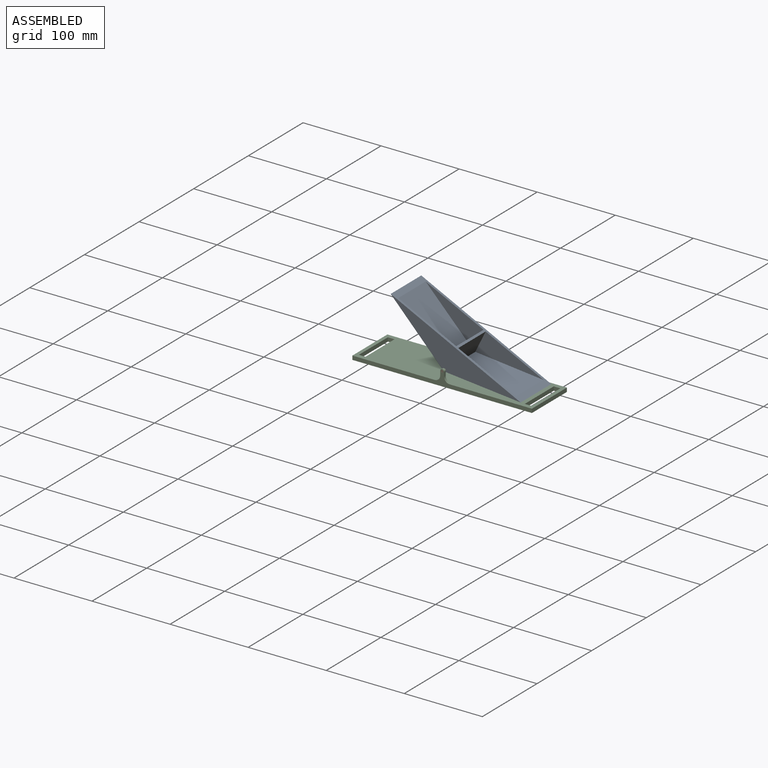
[diagram: assembled view]
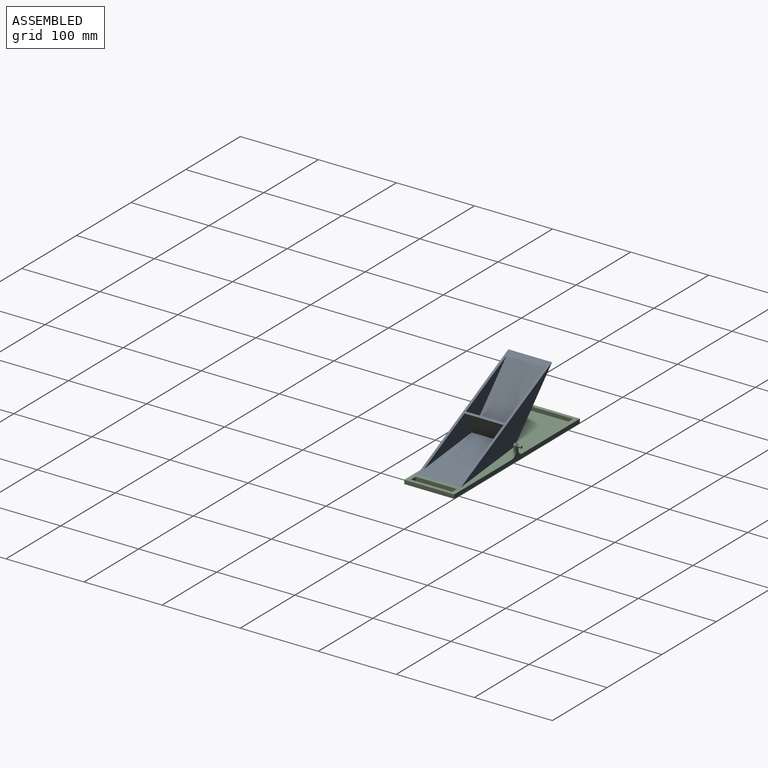
[diagram: assembled view, second angle]
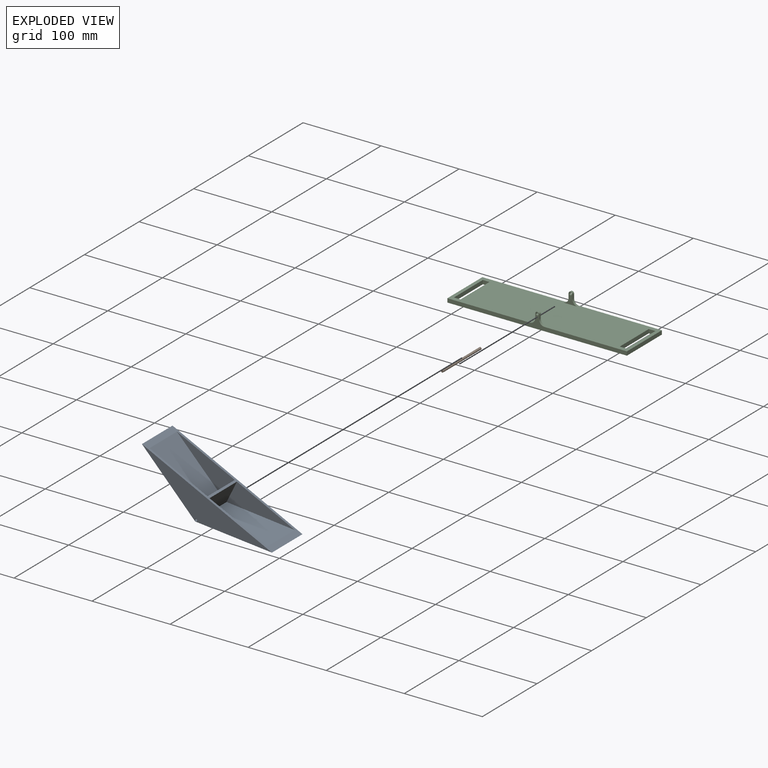
[diagram: exploded view]
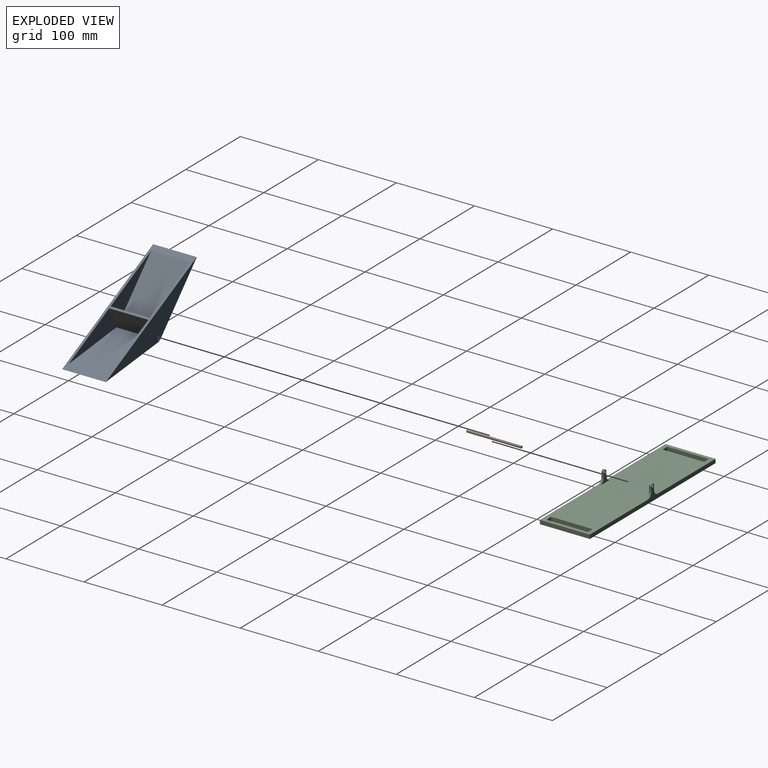
[diagram: exploded view, second angle]
ASSEMBLY  parts=3 mates=2
PART A: 21 faces, bbox 185.3x56x34.3 mm
  f0: plane 23.94x8.85mm, normal (0,-1,0), area 0.2mm2, adj f4,f5,f18
  f1: plane 92.56x34.27mm, normal (0,-1,0), area 0.8mm2, adj f2,f3,f17
  f2: plane 89.86x53mm, normal (-0.35,0,-0.94), area 5079mm2, adj f1,f3,f7,f14
  f3: plane 53x2.7mm, normal (-0.34,0,-0.94), area 152.1mm2, adj f1,f2,f4,f14
  f4: plane 53x2.7mm, normal (0.34,0,-0.94), area 152.1mm2, adj f0,f3,f5,f14
  f5: plane 82.25x56mm, normal (0.35,0,-0.94), area 4844.1mm2, adj f0,f4,f6,f14,f18,f19
  f6: plane 56x7.75mm, normal (0.34,0,-0.94), area 461.6mm2, adj f5,f7,f14,f19
  f7: plane 185.26x56mm, normal (0,0,1), area 2131.9mm2, adj f2,f6,f8,f9,f10,f11,f13,f14
  f8: plane 82.42x50mm, normal (-0.34,0,0.94), area 4385.7mm2, adj f7,f9,f15,f20
  f9: plane 50x30mm, normal (1,0,0), area 1500mm2, adj f7,f8,f15,f20
  f10: plane 50x30mm, normal (-1,0,0), area 1500mm2, adj f7,f11,f13,f16
  f11: plane 82.42x50mm, normal (0.34,0,0.94), area 4385.7mm2, adj f7,f10,f13,f16
  f12: cylinder r=1.55mm len=56mm, axis (0,1,0), area 545.4mm2, adj f14,f19
  f13: plane 82.42x30mm, normal (0,-1,0), area 1236.4mm2, adj f7,f10,f11
  f14: plane 185.26x34.27mm, normal (0,1,0), area 3166.3mm2, adj f2,f3,f4,f5,f6,f7,f12
  f15: plane 82.42x30mm, normal (0,-1,0), area 1236.4mm2, adj f7,f8,f9
  f16: plane 82.42x30mm, normal (0,1,0), area 1236.4mm2, adj f7,f10,f11
  f17: plane 92.56x34.27mm, normal (-0.35,0,-0.94), area 296.1mm2, adj f1,f7,f18,f19
  f18: plane 23.94x8.85mm, normal (0.35,0,-0.94), area 76.6mm2, adj f0,f5,f17,f19
  f19: plane 185.26x34.27mm, normal (0,-1,0), area 3165.3mm2, adj f5,f6,f7,f12,f17,f18
  f20: plane 82.42x30mm, normal (0,1,0), area 1236.4mm2, adj f7,f8,f9
PART B: 3 faces, bbox 3x3x70 mm
  f0: cylinder r=1.5mm len=70mm, axis (0,0,-1), area 659.7mm2, adj f1,f2
  f1: plane 3x3mm, normal (0,0,1), area 7.1mm2, adj f0
  f2: plane 3x3mm, normal (0,0,-1), area 7.1mm2, adj f0
PART C: 28 faces, bbox 230x64x20 mm
  f0: plane 230x64mm, normal (0,0,1), area 13705mm2, adj f2,f3,f8,f9,f10,f11,f16,f17
  f1: plane 230x64mm, normal (0,0,-1), area 13819mm2, adj f2,f3,f8,f16,f20,f21,f22,f23
  f2: plane 64x5mm, normal (-1,0,0), area 320mm2, adj f0,f1,f8,f16
  f3: plane 64x5mm, normal (1,0,0), area 320mm2, adj f0,f1,f8,f16
  f4: plane 5.5x3mm, normal (1,0,0), area 16.5mm2, adj f5,f8,f9,f10
  f5: cylinder r=2.5mm len=5mm, axis (0,-1,0), area 23.6mm2, adj f4,f6,f8,f9
  f6: plane 5.5x3mm, normal (-1,0,0), area 16.5mm2, adj f5,f8,f9,f11
  f7: cylinder r=1.6mm len=3.2mm, axis (0,-1,0), area 30.2mm2, adj f8,f9
  f8: plane 230x20mm, normal (0,1,0), area 1235.3mm2, adj f0,f1,f2,f3,f4,f5,f6,f7
  f9: plane 19x15mm, normal (0,-1,0), area 85.3mm2, adj f0,f4,f5,f6,f7,f10,f11
  f10: cylinder r=7mm len=7mm, axis (0,-1,0), area 33mm2, adj f0,f4,f8,f9
  f11: cylinder r=7mm len=7mm, axis (0,1,0), area 33mm2, adj f0,f6,f8,f9
  f12: plane 5.5x3mm, normal (1,0,0), area 16.5mm2, adj f13,f16,f17,f18
  f13: cylinder r=2.5mm len=5mm, axis (0,1,0), area 23.6mm2, adj f12,f14,f16,f17
  f14: plane 5.5x3mm, normal (-1,0,0), area 16.5mm2, adj f13,f16,f17,f19
  f15: cylinder r=1.6mm len=3.2mm, axis (0,1,0), area 30.2mm2, adj f16,f17
  f16: plane 230x20mm, normal (0,-1,0), area 1235.3mm2, adj f0,f1,f2,f3,f12,f13,f14,f15
  f17: plane 19x15mm, normal (0,1,0), area 85.3mm2, adj f0,f12,f13,f14,f15,f18,f19
  f18: cylinder r=7mm len=7mm, axis (0,-1,0), area 33mm2, adj f0,f12,f16,f17
  f19: cylinder r=7mm len=7mm, axis (0,1,0), area 33mm2, adj f0,f14,f16,f17
  f20: plane 53x5mm, normal (1,0,0), area 265mm2, adj f0,f1,f21,f23
  f21: plane 8.5x5mm, normal (0,1,0), area 42.5mm2, adj f0,f1,f20,f22
  f22: plane 53x5mm, normal (-1,0,0), area 265mm2, adj f0,f1,f21,f23
  f23: plane 8.5x5mm, normal (0,-1,0), area 42.5mm2, adj f0,f1,f20,f22
  f24: plane 8.5x5mm, normal (0,1,0), area 42.5mm2, adj f0,f1,f25,f27
  f25: plane 53x5mm, normal (-1,0,0), area 265mm2, adj f0,f1,f24,f26
  f26: plane 8.5x5mm, normal (0,-1,0), area 42.5mm2, adj f0,f1,f25,f27
  f27: plane 53x5mm, normal (1,0,0), area 265mm2, adj f0,f1,f24,f26
PLACE A rot(axis=(0,1,0),26deg) t=(7.51,-1.9,-2.05)mm
PLACE B rot(axis=(1,0,0),90deg) t=(-29.94,10.6,46.21)mm
PLACE C t=(0,1.6,-17.45)mm fixed
MATE revolute A.f12 <-> B.f0  axis (0,-1,0) through (0,-54.9,-17.45)mm
MATE revolute C.f7 <-> B.f0  axis (0,1,0) through (0,-59.4,-17.45)mm
